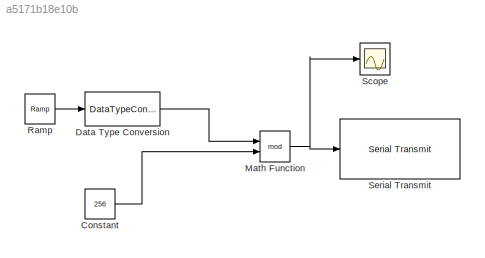
MODEL slx_a5171b18e10b
KIND model
BLOCK [Constant] Constant
  OutDataTypeStr = uint8
  SampleTime = 0.05
  Value = 256
BLOCK [DataTypeConversion] Data Type Conversion
  OutDataTypeStr = uint8
  RndMeth = Floor
  SampleTime = 0.1
  SaturateOnIntegerOverflow = off
BLOCK [Math] Math Function
  Operator = mod
  OutMax = [255]
  OutputSignalType = real
  Ports = [2, 1]
BLOCK [Reference] Ramp  REF=simulink/Sources/Ramp
  Ports = [0, 1]
  SourceBlock = simulink/Sources/Ramp
  SourceType = Ramp
  VectorParams1D = on
  X0 = 0
  slope = 1
  start = 0
BLOCK [Scope] Scope
  Floating = off
  NumInputPorts = 1
  Ports = [1]
  ShowLegends = off
BLOCK [Reference] Serial Transmit  REF=arduinolib/Serial Transmit
  Ports = [1]
  SourceBlock = arduinolib/Serial Transmit
  SourceType = Arduino Serial Transmit
  portNumber = 1
LINE Constant:1 -> Math Function:2
LINE Data Type Conversion:1 -> Math Function:1
NET Math Function:1 -> Scope:1, Serial Transmit:1
LINE Ramp:1 -> Data Type Conversion:1
note: NET lines group one-source signal fan-out (src -> all destinations, sorted); 1:1 wires keep LINE
